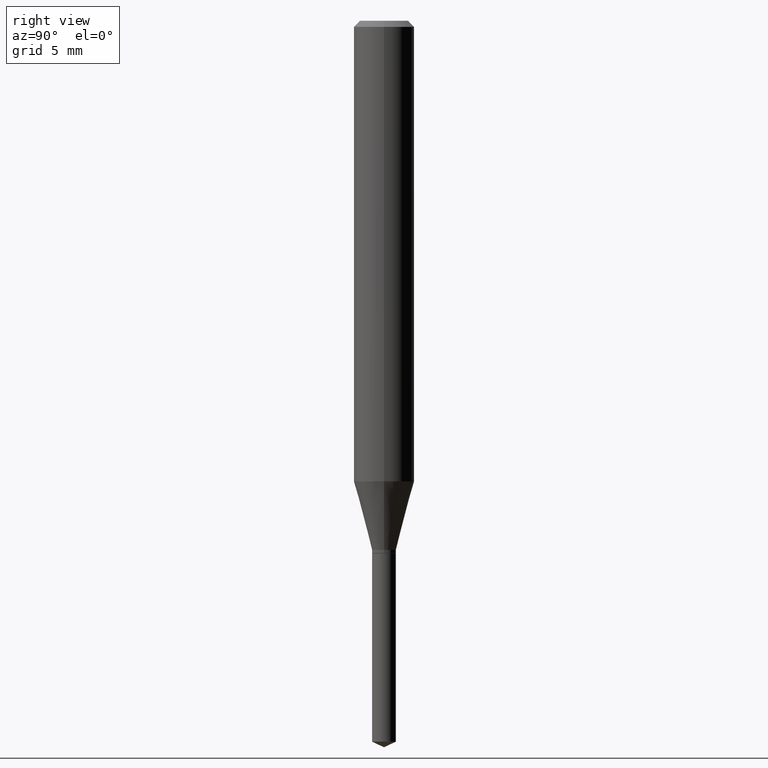
[diagram: clean part render]
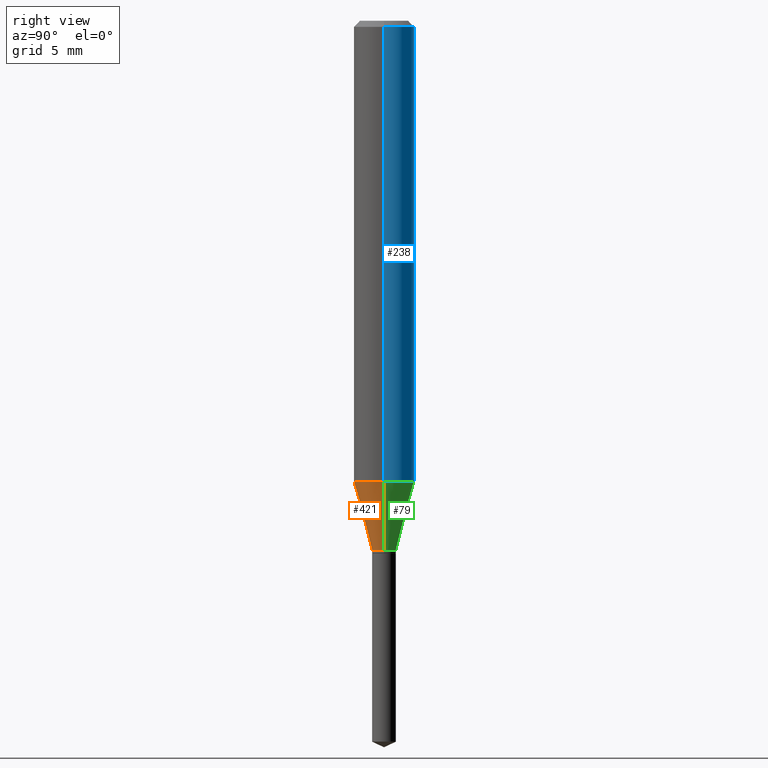
[diagram: same view with three faces highlighted in distinct colors, each labeled with its STEP entity id]
A machine part, right view with three faces highlighted in distinct colors.
Their STEP definitions:

[orange] entity #421 — the highlighted conical surface has half-angle 15 deg.
#7 = AXIS2_PLACEMENT_3D ( 'NONE', #31, #483, #368 ) ;
#18 = EDGE_CURVE ( 'NONE', #198, #127, #447, .T. ) ;
#23 = ORIENTED_EDGE ( 'NONE', *, *, #128, .F. ) ;
#27 = AXIS2_PLACEMENT_3D ( 'NONE', #416, #270, #299 ) ;
#31 = CARTESIAN_POINT ( 'NONE',  ( 2.671919217637880494E-29, -3.814792510820021060E-15, -1.092600000000000016 ) ) ;
#44 = CARTESIAN_POINT ( 'NONE',  ( -0.06250000000000012490, -2.876851681035814887E-15, -0.9511552743931396270 ) ) ;
#49 = CONICAL_SURFACE ( 'NONE', #7, 0.02460000000000000034, 0.2617993877991500740 ) ;
#55 = ORIENTED_EDGE ( 'NONE', *, *, #69, .T. ) ;
#60 = DIRECTION ( 'NONE',  ( 1.000000000000000000, -6.982962677686264344E-15, 0.000000000000000000 ) ) ;
#62 = FACE_OUTER_BOUND ( 'NONE', #467, .T. ) ;
#69 = EDGE_CURVE ( 'NONE', #355, #127, #119, .T. ) ;
#82 = LINE ( 'NONE', #300, #429 ) ;
#88 = EDGE_CURVE ( 'NONE', #196, #355, #361, .T. ) ;
#119 = LINE ( 'NONE', #151, #409 ) ;
#127 = VERTEX_POINT ( 'NONE', #456 ) ;
#128 = EDGE_CURVE ( 'NONE', #196, #198, #82, .T. ) ;
#146 = CARTESIAN_POINT ( 'NONE',  ( 2.326020553366887075E-29, -3.320940890885878686E-15, -0.9511552743931396270 ) ) ;
#151 = CARTESIAN_POINT ( 'NONE',  ( 0.02460000000000000034, -3.986573392691103322E-15, -1.092600000000000016 ) ) ;
#188 = CARTESIAN_POINT ( 'NONE',  ( -0.02460000000000000034, -3.652044608442045501E-15, -1.092600000000000016 ) ) ;
#193 = DIRECTION ( 'NONE',  ( -0.2588190451025213501, 5.211531920934551042E-15, 0.9659258262890682012 ) ) ;
#196 = VERTEX_POINT ( 'NONE', #188 ) ;
#198 = VERTEX_POINT ( 'NONE', #44 ) ;
#200 = AXIS2_PLACEMENT_3D ( 'NONE', #146, #246, #60 ) ;
#224 = DIRECTION ( 'NONE',  ( 0.2588190451025213501, 1.565188264969621968E-15, 0.9659258262890682012 ) ) ;
#235 = CARTESIAN_POINT ( 'NONE',  ( 0.02460000000000000034, -3.986573392691103322E-15, -1.092600000000000016 ) ) ;
#246 = DIRECTION ( 'NONE',  ( -2.445468806185136597E-29, 3.491481338843145583E-15, 1.000000000000000000 ) ) ;
#270 = DIRECTION ( 'NONE',  ( -2.445468806185136597E-29, 3.491481338843145583E-15, 1.000000000000000000 ) ) ;
#299 = DIRECTION ( 'NONE',  ( 1.000000000000000000, -6.982962677686261977E-15, 0.000000000000000000 ) ) ;
#300 = CARTESIAN_POINT ( 'NONE',  ( -0.02460000000000000034, -3.639998997823036732E-15, -1.092600000000000016 ) ) ;
#344 = ORIENTED_EDGE ( 'NONE', *, *, #18, .F. ) ;
#355 = VERTEX_POINT ( 'NONE', #235 ) ;
#361 = CIRCLE ( 'NONE', #27, 0.02460000000000000034 ) ;
#368 = DIRECTION ( 'NONE',  ( 1.000000000000000000, -6.982962677686261977E-15, 0.000000000000000000 ) ) ;
#409 = VECTOR ( 'NONE', #224, 39.37007874015747433 ) ;
#416 = CARTESIAN_POINT ( 'NONE',  ( 2.671919217637880494E-29, -3.814792510820021060E-15, -1.092600000000000016 ) ) ;
#421 = ADVANCED_FACE ( 'NONE', ( #62 ), #49, .T. ) ;
#429 = VECTOR ( 'NONE', #193, 39.37007874015747433 ) ;
#436 = ORIENTED_EDGE ( 'NONE', *, *, #88, .T. ) ;
#447 = CIRCLE ( 'NONE', #200, 0.06250000000000012490 ) ;
#456 = CARTESIAN_POINT ( 'NONE',  ( 0.06250000000000012490, -3.757376058241271144E-15, -0.9511552743931396270 ) ) ;
#467 = EDGE_LOOP ( 'NONE', ( #23, #436, #55, #344 ) ) ;
#483 = DIRECTION ( 'NONE',  ( -2.445468806185136597E-29, 3.491481338843145583E-15, 1.000000000000000000 ) ) ;

[blue] entity #238 — the highlighted cylindrical surface (edge-blend (fillet) strip) has radius 1.5875 mm, axis along (-0, 0, 1).
#9 = CYLINDRICAL_SURFACE ( 'NONE', #106, 0.06250000000000006939 ) ;
#14 = CARTESIAN_POINT ( 'NONE',  ( 0.000000000000000000, 0.000000000000000000, 0.000000000000000000 ) ) ;
#22 = CARTESIAN_POINT ( 'NONE',  ( 2.326020553366887075E-29, -3.320940890885878686E-15, -0.9511552743931396270 ) ) ;
#29 = EDGE_CURVE ( 'NONE', #198, #332, #451, .T. ) ;
#39 = DIRECTION ( 'NONE',  ( -2.445468806185136877E-29, 3.491481338843145188E-15, 1.000000000000000000 ) ) ;
#44 = CARTESIAN_POINT ( 'NONE',  ( -0.06250000000000012490, -2.876851681035814887E-15, -0.9511552743931396270 ) ) ;
#51 = DIRECTION ( 'NONE',  ( 1.000000000000000000, -6.982962677686266711E-15, 4.876176775795935793E-29 ) ) ;
#52 = ORIENTED_EDGE ( 'NONE', *, *, #364, .T. ) ;
#53 = DIRECTION ( 'NONE',  ( -2.445468806185136597E-29, 3.491481338843145583E-15, 1.000000000000000000 ) ) ;
#74 = VECTOR ( 'NONE', #39, 39.37007874015748143 ) ;
#93 = DIRECTION ( 'NONE',  ( 1.000000000000000000, -6.982962677686264344E-15, 0.000000000000000000 ) ) ;
#106 = AXIS2_PLACEMENT_3D ( 'NONE', #14, #153, #51 ) ;
#127 = VERTEX_POINT ( 'NONE', #456 ) ;
#134 = DIRECTION ( 'NONE',  ( -2.445468806185136597E-29, 3.491481338843145583E-15, 1.000000000000000000 ) ) ;
#142 = CARTESIAN_POINT ( 'NONE',  ( 0.06250000000000006939, -4.364351673553921624E-16, 3.047610484872463374E-30 ) ) ;
#153 = DIRECTION ( 'NONE',  ( -2.445468806185136597E-29, 3.491481338843145583E-15, 1.000000000000000000 ) ) ;
#159 = CIRCLE ( 'NONE', #402, 0.06250000000000012490 ) ;
#178 = CIRCLE ( 'NONE', #463, 0.06250000000000001388 ) ;
#180 = LINE ( 'NONE', #142, #303 ) ;
#182 = VERTEX_POINT ( 'NONE', #379 ) ;
#192 = ORIENTED_EDGE ( 'NONE', *, *, #29, .T. ) ;
#198 = VERTEX_POINT ( 'NONE', #44 ) ;
#202 = EDGE_LOOP ( 'NONE', ( #52, #192, #228, #359 ) ) ;
#208 = CARTESIAN_POINT ( 'NONE',  ( -0.06250000000000006939, 4.440892098500631092E-16, -3.074334431409319267E-30 ) ) ;
#228 = ORIENTED_EDGE ( 'NONE', *, *, #292, .F. ) ;
#230 = FACE_OUTER_BOUND ( 'NONE', #202, .T. ) ;
#238 = ADVANCED_FACE ( 'NONE', ( #230 ), #9, .T. ) ;
#245 = DIRECTION ( 'NONE',  ( 1.000000000000000000, -6.982962677686265922E-15, 0.000000000000000000 ) ) ;
#248 = DIRECTION ( 'NONE',  ( -2.445468806185136877E-29, 3.491481338843145188E-15, 1.000000000000000000 ) ) ;
#274 = CARTESIAN_POINT ( 'NONE',  ( -0.06250000000000001388, -1.238202993960645522E-15, -0.01250000000000008916 ) ) ;
#292 = EDGE_CURVE ( 'NONE', #182, #332, #178, .T. ) ;
#303 = VECTOR ( 'NONE', #248, 39.37007874015748143 ) ;
#316 = CARTESIAN_POINT ( 'NONE',  ( 3.056836007731442729E-31, -4.364351673553962300E-17, -0.01250000000000008916 ) ) ;
#332 = VERTEX_POINT ( 'NONE', #274 ) ;
#359 = ORIENTED_EDGE ( 'NONE', *, *, #425, .F. ) ;
#364 = EDGE_CURVE ( 'NONE', #127, #198, #159, .T. ) ;
#379 = CARTESIAN_POINT ( 'NONE',  ( 0.06250000000000001388, -4.800786840909313294E-16, -0.01250000000000008916 ) ) ;
#402 = AXIS2_PLACEMENT_3D ( 'NONE', #22, #53, #93 ) ;
#425 = EDGE_CURVE ( 'NONE', #127, #182, #180, .T. ) ;
#451 = LINE ( 'NONE', #208, #74 ) ;
#456 = CARTESIAN_POINT ( 'NONE',  ( 0.06250000000000012490, -3.757376058241271144E-15, -0.9511552743931396270 ) ) ;
#463 = AXIS2_PLACEMENT_3D ( 'NONE', #316, #134, #245 ) ;

[green] entity #79 — the highlighted conical surface has half-angle 15 deg.
#5 = DIRECTION ( 'NONE',  ( 1.000000000000000000, -6.982962677686261977E-15, 0.000000000000000000 ) ) ;
#6 = CONICAL_SURFACE ( 'NONE', #83, 0.02460000000000000034, 0.2617993877991500740 ) ;
#12 = ORIENTED_EDGE ( 'NONE', *, *, #128, .T. ) ;
#22 = CARTESIAN_POINT ( 'NONE',  ( 2.326020553366887075E-29, -3.320940890885878686E-15, -0.9511552743931396270 ) ) ;
#44 = CARTESIAN_POINT ( 'NONE',  ( -0.06250000000000012490, -2.876851681035814887E-15, -0.9511552743931396270 ) ) ;
#47 = FACE_OUTER_BOUND ( 'NONE', #387, .T. ) ;
#53 = DIRECTION ( 'NONE',  ( -2.445468806185136597E-29, 3.491481338843145583E-15, 1.000000000000000000 ) ) ;
#58 = ORIENTED_EDGE ( 'NONE', *, *, #69, .F. ) ;
#65 = CIRCLE ( 'NONE', #258, 0.02460000000000000034 ) ;
#69 = EDGE_CURVE ( 'NONE', #355, #127, #119, .T. ) ;
#79 = ADVANCED_FACE ( 'NONE', ( #47 ), #6, .T. ) ;
#82 = LINE ( 'NONE', #300, #429 ) ;
#83 = AXIS2_PLACEMENT_3D ( 'NONE', #260, #121, #5 ) ;
#93 = DIRECTION ( 'NONE',  ( 1.000000000000000000, -6.982962677686264344E-15, 0.000000000000000000 ) ) ;
#105 = CARTESIAN_POINT ( 'NONE',  ( 2.671919217637880494E-29, -3.814792510820021060E-15, -1.092600000000000016 ) ) ;
#119 = LINE ( 'NONE', #151, #409 ) ;
#121 = DIRECTION ( 'NONE',  ( -2.445468806185136597E-29, 3.491481338843145583E-15, 1.000000000000000000 ) ) ;
#127 = VERTEX_POINT ( 'NONE', #456 ) ;
#128 = EDGE_CURVE ( 'NONE', #196, #198, #82, .T. ) ;
#151 = CARTESIAN_POINT ( 'NONE',  ( 0.02460000000000000034, -3.986573392691103322E-15, -1.092600000000000016 ) ) ;
#159 = CIRCLE ( 'NONE', #402, 0.06250000000000012490 ) ;
#188 = CARTESIAN_POINT ( 'NONE',  ( -0.02460000000000000034, -3.652044608442045501E-15, -1.092600000000000016 ) ) ;
#193 = DIRECTION ( 'NONE',  ( -0.2588190451025213501, 5.211531920934551042E-15, 0.9659258262890682012 ) ) ;
#196 = VERTEX_POINT ( 'NONE', #188 ) ;
#198 = VERTEX_POINT ( 'NONE', #44 ) ;
#219 = DIRECTION ( 'NONE',  ( 1.000000000000000000, -6.982962677686261977E-15, 0.000000000000000000 ) ) ;
#224 = DIRECTION ( 'NONE',  ( 0.2588190451025213501, 1.565188264969621968E-15, 0.9659258262890682012 ) ) ;
#235 = CARTESIAN_POINT ( 'NONE',  ( 0.02460000000000000034, -3.986573392691103322E-15, -1.092600000000000016 ) ) ;
#258 = AXIS2_PLACEMENT_3D ( 'NONE', #105, #285, #219 ) ;
#260 = CARTESIAN_POINT ( 'NONE',  ( 2.671919217637880494E-29, -3.814792510820021060E-15, -1.092600000000000016 ) ) ;
#272 = ORIENTED_EDGE ( 'NONE', *, *, #364, .F. ) ;
#285 = DIRECTION ( 'NONE',  ( -2.445468806185136597E-29, 3.491481338843145583E-15, 1.000000000000000000 ) ) ;
#288 = ORIENTED_EDGE ( 'NONE', *, *, #461, .T. ) ;
#300 = CARTESIAN_POINT ( 'NONE',  ( -0.02460000000000000034, -3.639998997823036732E-15, -1.092600000000000016 ) ) ;
#355 = VERTEX_POINT ( 'NONE', #235 ) ;
#364 = EDGE_CURVE ( 'NONE', #127, #198, #159, .T. ) ;
#387 = EDGE_LOOP ( 'NONE', ( #288, #12, #272, #58 ) ) ;
#402 = AXIS2_PLACEMENT_3D ( 'NONE', #22, #53, #93 ) ;
#409 = VECTOR ( 'NONE', #224, 39.37007874015747433 ) ;
#429 = VECTOR ( 'NONE', #193, 39.37007874015747433 ) ;
#456 = CARTESIAN_POINT ( 'NONE',  ( 0.06250000000000012490, -3.757376058241271144E-15, -0.9511552743931396270 ) ) ;
#461 = EDGE_CURVE ( 'NONE', #355, #196, #65, .T. ) ;